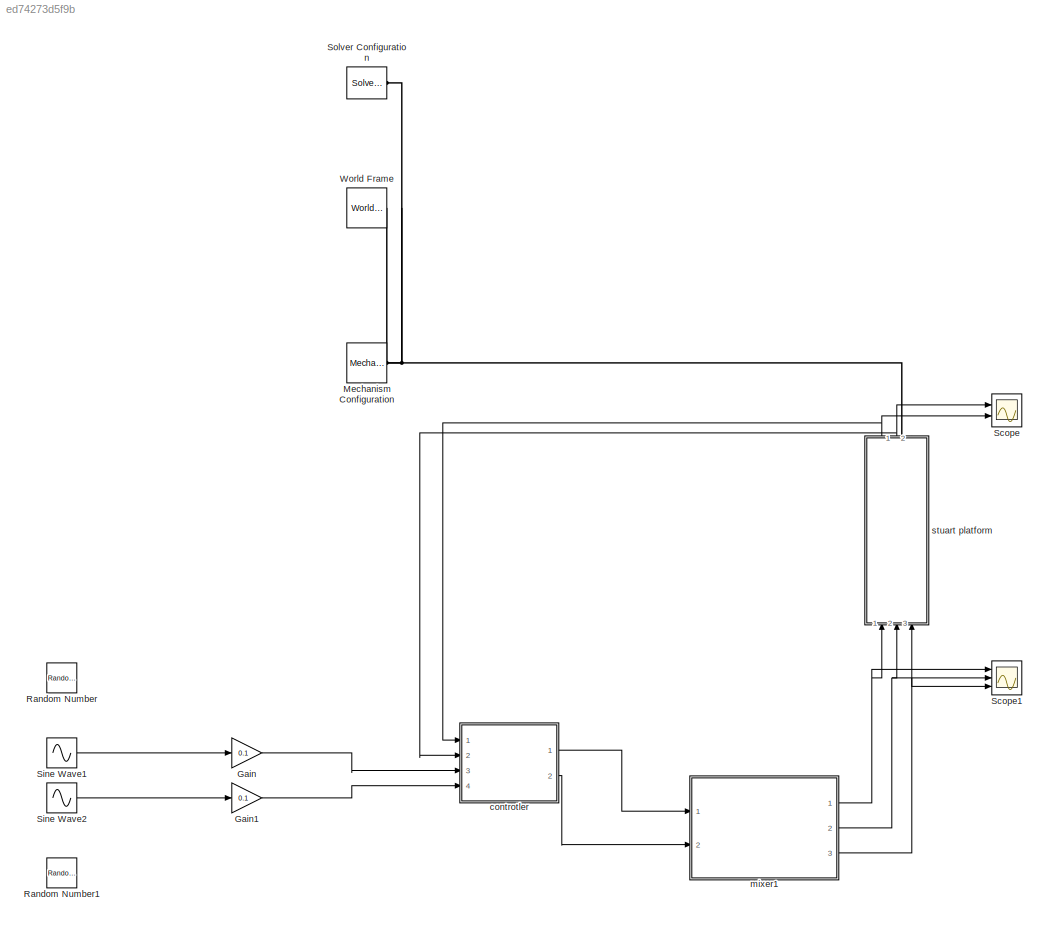
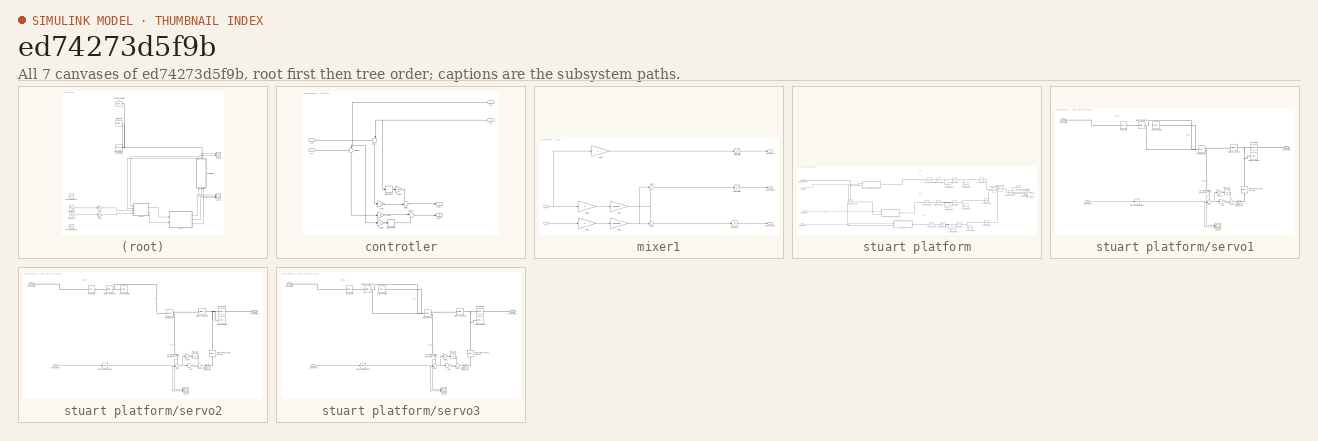
[diagram: thumbnail index - all 7 canvases of the model, root first then tree order]
MODEL slx_ed74273d5f9b
KIND model
CONFIG AbsTol = auto
CONFIG EnableMultiTasking = off
CONFIG FixedStep = auto
CONFIG MaxStep = auto
CONFIG MinStep = auto
CONFIG RelTol = 1e-3
CONFIG SampleTimeConstraint = Unconstrained
CONFIG Solver = VariableStepAuto
CONFIG SolverName = VariableStepAuto
CONFIG StartTime = 0.0
CONFIG StopTime = 100
BLOCK [Gain] Gain
  Gain = 0.1
BLOCK [Gain] Gain1
  Gain = 0.1
BLOCK [Reference] Mechanism Configuration  REF=sm_lib/Utilities/Mechanism
Configuration
  Ports = [0, 0, 0, 0, 0, 0, 1]
  SourceBlock = sm_lib/Utilities/Mechanism\nConfiguration
  SourceProductBaseCode = MS
  SourceType = Mechanism\nConfiguration
BLOCK [RandomNumber] Random Number
  SampleTime = 20
BLOCK [RandomNumber] Random Number1
  SampleTime = 5
BLOCK [Scope] Scope
  Floating = off
  NumInputPorts = 2
  Ports = [2]
  ScopeSpecificationString = Simulink.scopes.TimeScopeBlockCfg('CurrentConfiguration', extmgr.ConfigurationSet(extmgr.Configuration('Core','General UI',true),extmgr.Configuration('Core','Source UI',true),extmgr.Configuration('Sources','WiredSimulink',true,'DataLoggingVariableName','ScopeData1'),extmgr.Configuration('Visuals','Time Domain',true,'SerializedDisplays',{struct('MinYLimReal','-0.17021','MaxYLimReal','0.16793','YLab...<+1421ch>
BLOCK [Scope] Scope1
  Floating = off
  NumInputPorts = 3
  Ports = [3]
  ScopeSpecificationString = Simulink.scopes.TimeScopeBlockCfg('CurrentConfiguration', extmgr.ConfigurationSet(extmgr.Configuration('Core','General UI',true),extmgr.Configuration('Core','Source UI',true),extmgr.Configuration('Sources','WiredSimulink',true,'DataLoggingVariableName','ScopeData2'),extmgr.Configuration('Visuals','Time Domain',true,'PlotType','Line','SerializedDisplays',{struct('MinYLimReal','-66750927.68177','Max...<+1921ch>
BLOCK [Sin] Sine Wave1
  Amplitude = 0.5
  Ports = [0, 1]
  SampleTime = 0
BLOCK [Sin] Sine Wave2
  Frequency = 2
  Phase = pi/2
  Ports = [0, 1]
  SampleTime = 0
BLOCK [Reference] Solver Configuration  REF=nesl_utility/Solver
Configuration
  Ports = [0, 0, 0, 0, 0, 0, 1]
  SourceBlock = nesl_utility/Solver\nConfiguration
  SourceProductBaseCode = MT,SS
  SourceType = Solver\nConfiguration
BLOCK [Reference] World Frame  REF=sm_lib/Frames and
Transforms/World Frame
  Ports = [0, 0, 0, 0, 0, 0, 1]
  SourceBlock = sm_lib/Frames and\nTransforms/World Frame
  SourceProductBaseCode = MS
  SourceType = World Frame
BLOCK [SubSystem] controtler
  Ports = [4, 2]
  RequestExecContextInheritance = off
BLOCK [Derivative] controtler/Derivative
BLOCK [Derivative] controtler/Derivative1
BLOCK [Gain] controtler/Gain
  Gain = -40
BLOCK [Gain] controtler/Gain1
  Gain = 40
BLOCK [Gain] controtler/Gain2
  Gain = -30
BLOCK [Gain] controtler/Gain3
  Gain = 30
BLOCK [Inport] controtler/In1
BLOCK [Inport] controtler/In2
  Port = 2
BLOCK [Inport] controtler/In3
  Port = 3
BLOCK [Inport] controtler/In4
  Port = 4
BLOCK [Outport] controtler/Out1
BLOCK [Outport] controtler/Out2
  Port = 2
BLOCK [Sum] controtler/Sum
  Inputs = ++|
  Ports = [2, 1]
BLOCK [Sum] controtler/Sum1
  Inputs = |++
  Ports = [2, 1]
BLOCK [Sum] controtler/Sum2
  Inputs = ++|
  NameLocation = left
  Ports = [2, 1]
BLOCK [Sum] controtler/Sum3
  Inputs = ++|
  NameLocation = left
  Ports = [2, 1]
BLOCK [SubSystem] mixer1
  Ports = [2, 3]
  RequestExecContextInheritance = off
BLOCK [Outport] mixer1/Degrees in
  NameLocation = top
BLOCK [Outport] mixer1/Degrees in1
  NameLocation = top
  Port = 2
BLOCK [Outport] mixer1/Degrees in2
  NameLocation = top
  Port = 3
BLOCK [Gain] mixer1/Gain1
  Gain = sin(deg2rad(30))
BLOCK [Gain] mixer1/Gain2
  Gain = cos(deg2rad(30))
BLOCK [Gain] mixer1/Gain3
BLOCK [Gain] mixer1/Gain4
BLOCK [Gain] mixer1/Gain5
BLOCK [Saturate] mixer1/Saturation
  LowerLimit = -45
  UpperLimit = 45
BLOCK [Saturate] mixer1/Saturation1
  LowerLimit = -45
  UpperLimit = 45
BLOCK [Saturate] mixer1/Saturation2
  LowerLimit = -45
  UpperLimit = 45
BLOCK [Sum] mixer1/Sum1
  Inputs = -+|
  Ports = [2, 1]
BLOCK [Sum] mixer1/Sum3
  Inputs = |--
  Ports = [2, 1]
BLOCK [Inport] mixer1/x
  Port = 2
BLOCK [Inport] mixer1/y
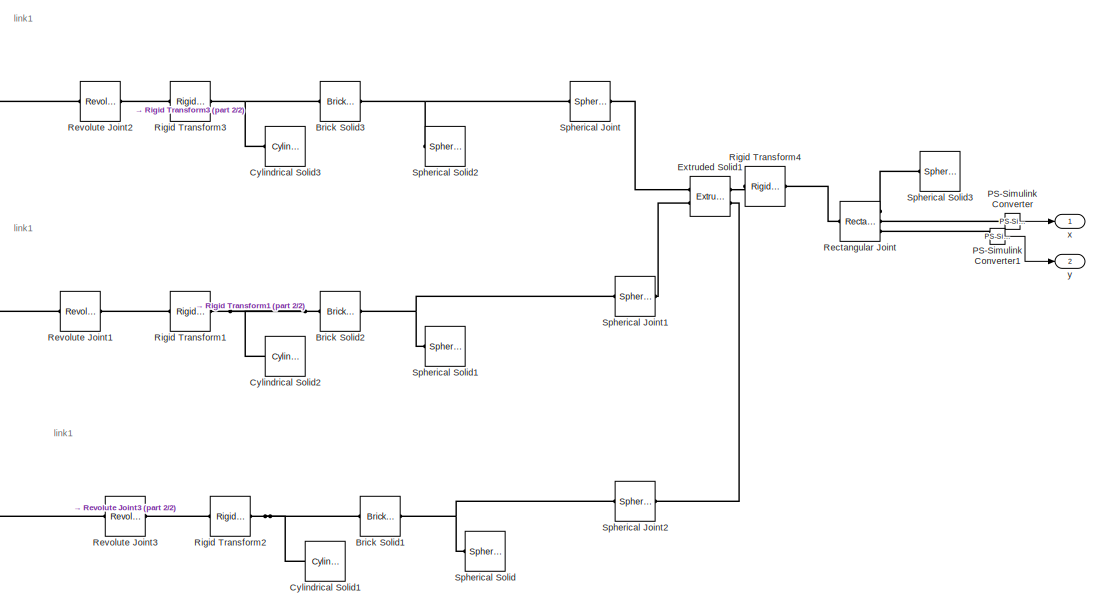
[diagram: stuart platform - part 1/2, right side, full height]
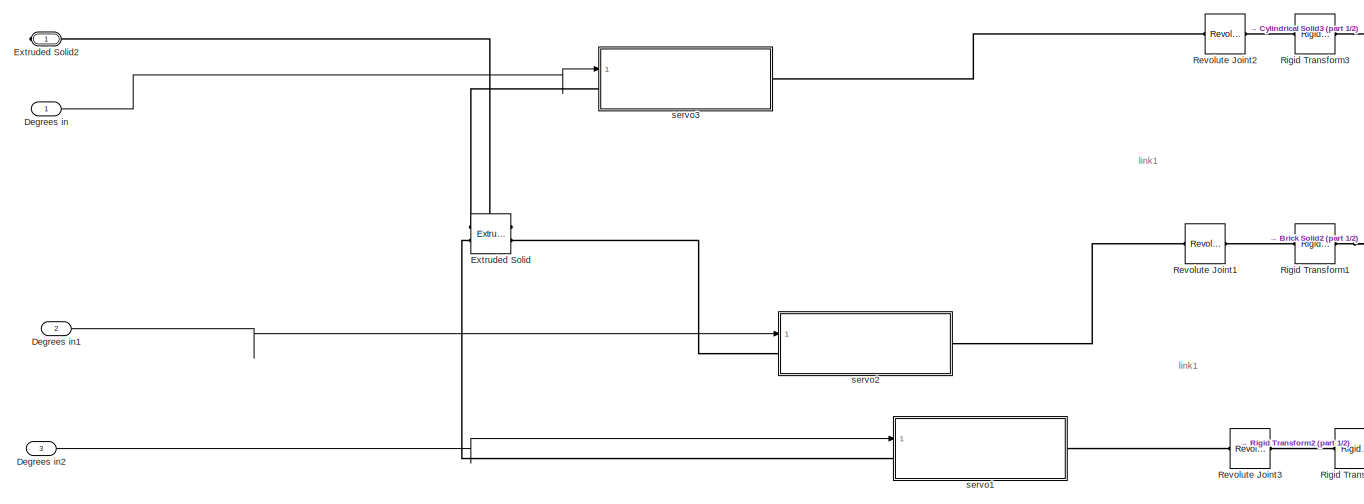
[diagram: stuart platform - part 2/2, left side, full height]
BLOCK [SubSystem] stuart platform
  NameLocation = left
  Ports = [3, 2, 0, 0, 0, 0, 1]
  RequestExecContextInheritance = off
BLOCK [Reference] stuart platform/Brick Solid1  REF=sm_lib/Body Elements/Brick Solid
  Ports = [0, 0, 0, 0, 0, 1, 1]
  SourceBlock = sm_lib/Body Elements/Brick Solid
  SourceProductBaseCode = MS
  SourceType = Brick Solid
BLOCK [Reference] stuart platform/Brick Solid2  REF=sm_lib/Body Elements/Brick Solid
  Ports = [0, 0, 0, 0, 0, 1, 1]
  SourceBlock = sm_lib/Body Elements/Brick Solid
  SourceProductBaseCode = MS
  SourceType = Brick Solid
BLOCK [Reference] stuart platform/Brick Solid3  REF=sm_lib/Body Elements/Brick Solid
  Ports = [0, 0, 0, 0, 0, 1, 1]
  SourceBlock = sm_lib/Body Elements/Brick Solid
  SourceProductBaseCode = MS
  SourceType = Brick Solid
BLOCK [Reference] stuart platform/Cylindrical Solid1  REF=sm_lib/Body Elements/Cylindrical Solid
  NameLocation = top
  Ports = [0, 0, 0, 0, 0, 0, 1]
  SourceBlock = sm_lib/Body Elements/Cylindrical Solid
  SourceProductBaseCode = MS
  SourceType = Cylindrical Solid
BLOCK [Reference] stuart platform/Cylindrical Solid2  REF=sm_lib/Body Elements/Cylindrical Solid
  NameLocation = top
  Ports = [0, 0, 0, 0, 0, 0, 1]
  SourceBlock = sm_lib/Body Elements/Cylindrical Solid
  SourceProductBaseCode = MS
  SourceType = Cylindrical Solid
BLOCK [Reference] stuart platform/Cylindrical Solid3  REF=sm_lib/Body Elements/Cylindrical Solid
  NameLocation = top
  Ports = [0, 0, 0, 0, 0, 0, 1]
  SourceBlock = sm_lib/Body Elements/Cylindrical Solid
  SourceProductBaseCode = MS
  SourceType = Cylindrical Solid
BLOCK [Inport] stuart platform/Degrees in
BLOCK [Inport] stuart platform/Degrees in1
  Port = 2
BLOCK [Inport] stuart platform/Degrees in2
  Port = 3
BLOCK [Reference] stuart platform/Extruded Solid  REF=sm_lib/Body Elements/Extruded Solid
  Ports = [0, 0, 0, 0, 0, 2, 2]
  SourceBlock = sm_lib/Body Elements/Extruded Solid
  SourceProductBaseCode = MS
  SourceType = Extruded Solid
BLOCK [Reference] stuart platform/Extruded Solid1  REF=sm_lib/Body Elements/Extruded Solid
  Ports = [0, 0, 0, 0, 0, 2, 2]
  SourceBlock = sm_lib/Body Elements/Extruded Solid
  SourceProductBaseCode = MS
  SourceType = Extruded Solid
BLOCK [PMIOPort] stuart platform/Extruded Solid2
  Side = Right
BLOCK [Reference] stuart platform/PS-Simulink Converter  REF=nesl_utility/PS-Simulink
Converter
  NameLocation = top
  Ports = [0, 1, 0, 0, 0, 1]
  SourceBlock = nesl_utility/PS-Simulink\nConverter
  SourceProductBaseCode = SS
  SourceType = PS-Simulink\nConverter
BLOCK [Reference] stuart platform/PS-Simulink Converter1  REF=nesl_utility/PS-Simulink
Converter
  NameLocation = top
  Ports = [0, 1, 0, 0, 0, 1]
  SourceBlock = nesl_utility/PS-Simulink\nConverter
  SourceProductBaseCode = SS
  SourceType = PS-Simulink\nConverter
BLOCK [Reference] stuart platform/Rectangular Joint  REF=sm_lib/Joints/Rectangular
Joint
  Ports = [0, 0, 0, 0, 0, 1, 3]
  SourceBlock = sm_lib/Joints/Rectangular\nJoint
  SourceProductBaseCode = MS
  SourceType = Rectangular\nJoint
BLOCK [Reference] stuart platform/Revolute Joint1  REF=sm_lib/Joints/Revolute Joint
  Ports = [0, 0, 0, 0, 0, 1, 1]
  SourceBlock = sm_lib/Joints/Revolute Joint
  SourceProductBaseCode = MS
  SourceType = Revolute Joint
BLOCK [Reference] stuart platform/Revolute Joint2  REF=sm_lib/Joints/Revolute Joint
  Ports = [0, 0, 0, 0, 0, 1, 1]
  SourceBlock = sm_lib/Joints/Revolute Joint
  SourceProductBaseCode = MS
  SourceType = Revolute Joint
BLOCK [Reference] stuart platform/Revolute Joint3  REF=sm_lib/Joints/Revolute Joint
  Ports = [0, 0, 0, 0, 0, 1, 1]
  SourceBlock = sm_lib/Joints/Revolute Joint
  SourceProductBaseCode = MS
  SourceType = Revolute Joint
BLOCK [Reference] stuart platform/Rigid Transform1  REF=sm_lib/Frames and
Transforms/Rigid
Transform
  Ports = [0, 0, 0, 0, 0, 1, 1]
  SourceBlock = sm_lib/Frames and\nTransforms/Rigid\nTransform
  SourceProductBaseCode = MS
  SourceType = Rigid\nTransform
BLOCK [Reference] stuart platform/Rigid Transform2  REF=sm_lib/Frames and
Transforms/Rigid
Transform
  Ports = [0, 0, 0, 0, 0, 1, 1]
  SourceBlock = sm_lib/Frames and\nTransforms/Rigid\nTransform
  SourceProductBaseCode = MS
  SourceType = Rigid\nTransform
BLOCK [Reference] stuart platform/Rigid Transform3  REF=sm_lib/Frames and
Transforms/Rigid
Transform
  Ports = [0, 0, 0, 0, 0, 1, 1]
  SourceBlock = sm_lib/Frames and\nTransforms/Rigid\nTransform
  SourceProductBaseCode = MS
  SourceType = Rigid\nTransform
BLOCK [Reference] stuart platform/Rigid Transform4  REF=sm_lib/Frames and
Transforms/Rigid
Transform
  Ports = [0, 0, 0, 0, 0, 1, 1]
  SourceBlock = sm_lib/Frames and\nTransforms/Rigid\nTransform
  SourceProductBaseCode = MS
  SourceType = Rigid\nTransform
BLOCK [Reference] stuart platform/Spherical Joint  REF=sm_lib/Joints/Spherical
Joint
  Ports = [0, 0, 0, 0, 0, 1, 1]
  SourceBlock = sm_lib/Joints/Spherical\nJoint
  SourceProductBaseCode = MS
  SourceType = Spherical\nJoint
BLOCK [Reference] stuart platform/Spherical Joint1  REF=sm_lib/Joints/Spherical
Joint
  Ports = [0, 0, 0, 0, 0, 1, 1]
  SourceBlock = sm_lib/Joints/Spherical\nJoint
  SourceProductBaseCode = MS
  SourceType = Spherical\nJoint
BLOCK [Reference] stuart platform/Spherical Joint2  REF=sm_lib/Joints/Spherical
Joint
  Ports = [0, 0, 0, 0, 0, 1, 1]
  SourceBlock = sm_lib/Joints/Spherical\nJoint
  SourceProductBaseCode = MS
  SourceType = Spherical\nJoint
BLOCK [Reference] stuart platform/Spherical Solid  REF=sm_lib/Body Elements/Spherical Solid
  Ports = [0, 0, 0, 0, 0, 0, 1]
  SourceBlock = sm_lib/Body Elements/Spherical Solid
  SourceProductBaseCode = MS
  SourceType = Spherical Solid
BLOCK [Reference] stuart platform/Spherical Solid1  REF=sm_lib/Body Elements/Spherical Solid
  Ports = [0, 0, 0, 0, 0, 0, 1]
  SourceBlock = sm_lib/Body Elements/Spherical Solid
  SourceProductBaseCode = MS
  SourceType = Spherical Solid
BLOCK [Reference] stuart platform/Spherical Solid2  REF=sm_lib/Body Elements/Spherical Solid
  Ports = [0, 0, 0, 0, 0, 0, 1]
  SourceBlock = sm_lib/Body Elements/Spherical Solid
  SourceProductBaseCode = MS
  SourceType = Spherical Solid
BLOCK [Reference] stuart platform/Spherical Solid3  REF=sm_lib/Body Elements/Spherical Solid
  Ports = [0, 0, 0, 0, 0, 0, 1]
  SourceBlock = sm_lib/Body Elements/Spherical Solid
  SourceProductBaseCode = MS
  SourceType = Spherical Solid
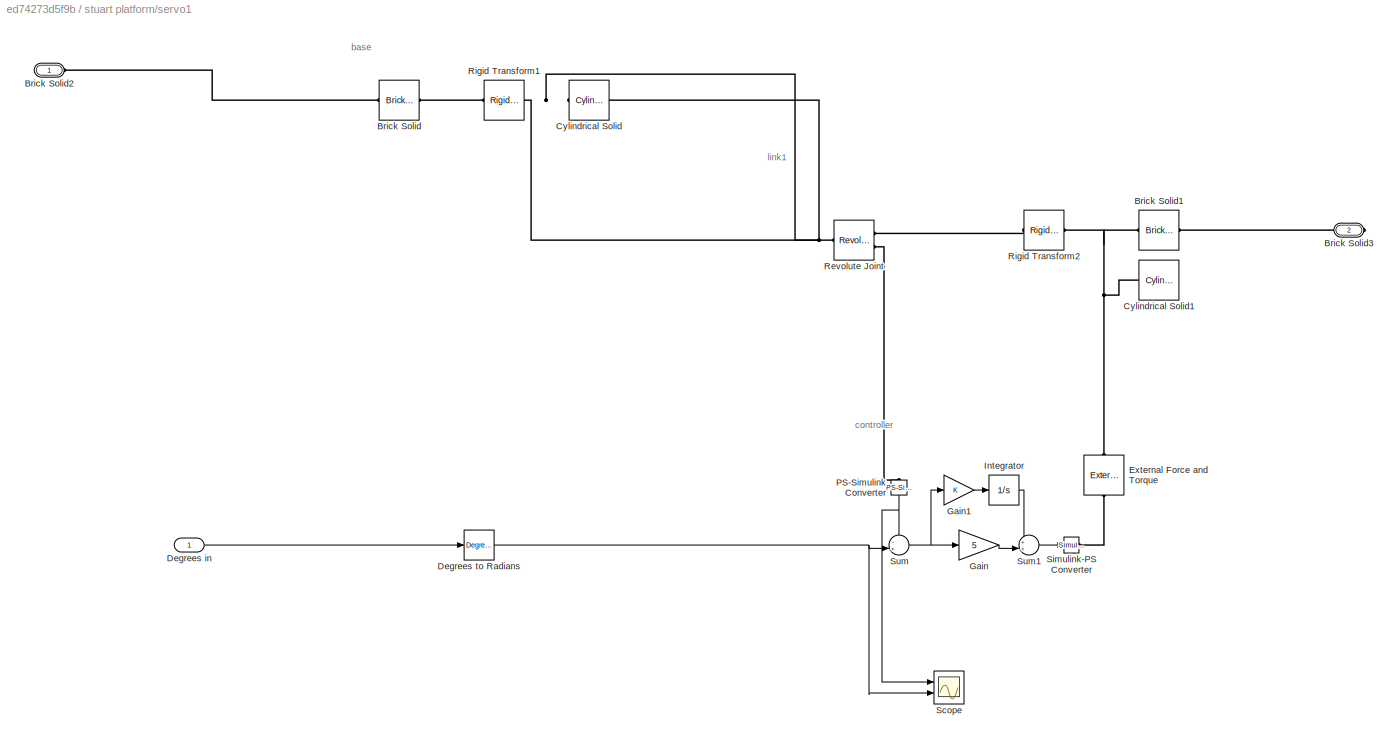
BLOCK [SubSystem] stuart platform/servo1
  PortSchema = {"entries":[{"content":{"sides":[{"content":{"connectorIds":["LConn1","In1"]},"type":"ConnectorPlacement.EquallySpacedRectSide","uuid":"9278b2ec-0bec-4e4f-9181-436d8a3d14d5"},{"content":{"connectorIds":["RConn1"],"side":"RIGHT"},"type":"ConnectorPlacement.EquallySpacedRectSide","uuid":"b3a11b61-2179-41b2-8de1-34a413ba9473"},{"content":{"connectorIds":[],"side":"TOP"},"type":"ConnectorPlacement.Equ...<+253ch>  <repeated x3 — deduplicated; at blocks: servo1, servo2, servo3>
  Ports = [1, 0, 0, 0, 0, 1, 1]
  RequestExecContextInheritance = off
BLOCK [Reference] stuart platform/servo1/Brick Solid  REF=sm_lib/Body Elements/Brick Solid
  NameLocation = left
  Ports = [0, 0, 0, 0, 0, 1, 1]
  SourceBlock = sm_lib/Body Elements/Brick Solid
  SourceProductBaseCode = MS
  SourceType = Brick Solid
BLOCK [Reference] stuart platform/servo1/Brick Solid1  REF=sm_lib/Body Elements/Brick Solid
  Ports = [0, 0, 0, 0, 0, 1, 1]
  SourceBlock = sm_lib/Body Elements/Brick Solid
  SourceProductBaseCode = MS
  SourceType = Brick Solid
BLOCK [PMIOPort] stuart platform/servo1/Brick Solid2
  Side = Left
BLOCK [PMIOPort] stuart platform/servo1/Brick Solid3
  Port = 2
  Side = Right
BLOCK [Reference] stuart platform/servo1/Cylindrical Solid  REF=sm_lib/Body Elements/Cylindrical Solid
  NameLocation = top
  Ports = [0, 0, 0, 0, 0, 0, 1]
  SourceBlock = sm_lib/Body Elements/Cylindrical Solid
  SourceProductBaseCode = MS
  SourceType = Cylindrical Solid
BLOCK [Reference] stuart platform/servo1/Cylindrical Solid1  REF=sm_lib/Body Elements/Cylindrical Solid
  NameLocation = top
  Ports = [0, 0, 0, 0, 0, 0, 1]
  SourceBlock = sm_lib/Body Elements/Cylindrical Solid
  SourceProductBaseCode = MS
  SourceType = Cylindrical Solid
BLOCK [Inport] stuart platform/servo1/Degrees in
BLOCK [Reference] stuart platform/servo1/Degrees to Radians  REF=simulink_extras/Transformations/Degrees to
Radians
  Ports = [1, 1]
  SourceBlock = simulink_extras/Transformations/Degrees to\nRadians
  SourceProductBaseCode = SL
  SourceType = DegreesToRadians
BLOCK [Reference] stuart platform/servo1/External Force and Torque  REF=sm_lib/Forces and
Torques/External Force
and Torque
  NameLocation = right
  Ports = [0, 0, 0, 0, 0, 1, 1]
  SourceBlock = sm_lib/Forces and\nTorques/External Force\nand Torque
  SourceProductBaseCode = MS
  SourceType = External Force\nand Torque
BLOCK [Gain] stuart platform/servo1/Gain
  Gain = 5
BLOCK [Gain] stuart platform/servo1/Gain1
BLOCK [Integrator] stuart platform/servo1/Integrator
  Ports = [1, 1]
BLOCK [Reference] stuart platform/servo1/PS-Simulink Converter  REF=nesl_utility/PS-Simulink
Converter
  NameLocation = left
  Ports = [0, 1, 0, 0, 0, 1]
  SourceBlock = nesl_utility/PS-Simulink\nConverter
  SourceProductBaseCode = SS
  SourceType = PS-Simulink\nConverter
BLOCK [Reference] stuart platform/servo1/Revolute Joint  REF=sm_lib/Joints/Revolute Joint
  Ports = [0, 0, 0, 0, 0, 1, 2]
  SourceBlock = sm_lib/Joints/Revolute Joint
  SourceProductBaseCode = MS
  SourceType = Revolute Joint
BLOCK [Reference] stuart platform/servo1/Rigid Transform1  REF=sm_lib/Frames and
Transforms/Rigid
Transform
  Ports = [0, 0, 0, 0, 0, 1, 1]
  SourceBlock = sm_lib/Frames and\nTransforms/Rigid\nTransform
  SourceProductBaseCode = MS
  SourceType = Rigid\nTransform
BLOCK [Reference] stuart platform/servo1/Rigid Transform2  REF=sm_lib/Frames and
Transforms/Rigid
Transform
  Ports = [0, 0, 0, 0, 0, 1, 1]
  SourceBlock = sm_lib/Frames and\nTransforms/Rigid\nTransform
  SourceProductBaseCode = MS
  SourceType = Rigid\nTransform
BLOCK [Scope] stuart platform/servo1/Scope
  Floating = off
  NumInputPorts = 2
  Ports = [2]
  ScopeSpecificationString = Simulink.scopes.TimeScopeBlockCfg('CurrentConfiguration', extmgr.ConfigurationSet(extmgr.Configuration('Core','General UI',true),extmgr.Configuration('Core','Source UI',true),extmgr.Configuration('Sources','WiredSimulink',true),extmgr.Configuration('Visuals','Time Domain',true,'SerializedDisplays',{struct('MinYLimReal','-0.19905','MaxYLimReal','1.7902','YLabelReal','','MinYLimMag','0.00000','MaxYL...<+1358ch>  <repeated x3 — deduplicated; at blocks: Scope>
BLOCK [Reference] stuart platform/servo1/Simulink-PS Converter  REF=nesl_utility/Simulink-PS
Converter
  Ports = [1, 0, 0, 0, 0, 0, 1]
  SourceBlock = nesl_utility/Simulink-PS\nConverter
  SourceProductBaseCode = SS
  SourceType = Simulink-PS\nConverter
BLOCK [Sum] stuart platform/servo1/Sum
  Inputs = -+|
  Ports = [2, 1]
BLOCK [Sum] stuart platform/servo1/Sum1
  Inputs = ++|
  Ports = [2, 1]
BLOCK [SubSystem] stuart platform/servo2
  Ports = [1, 0, 0, 0, 0, 1, 1]
  RequestExecContextInheritance = off
BLOCK [Reference] stuart platform/servo2/Brick Solid  REF=sm_lib/Body Elements/Brick Solid
  NameLocation = left
  Ports = [0, 0, 0, 0, 0, 1, 1]
  SourceBlock = sm_lib/Body Elements/Brick Solid
  SourceProductBaseCode = MS
  SourceType = Brick Solid
BLOCK [Reference] stuart platform/servo2/Brick Solid1  REF=sm_lib/Body Elements/Brick Solid
  Ports = [0, 0, 0, 0, 0, 1, 1]
  SourceBlock = sm_lib/Body Elements/Brick Solid
  SourceProductBaseCode = MS
  SourceType = Brick Solid
BLOCK [PMIOPort] stuart platform/servo2/Brick Solid2
  Side = Left
BLOCK [PMIOPort] stuart platform/servo2/Brick Solid3
  Port = 2
  Side = Right
BLOCK [Reference] stuart platform/servo2/Cylindrical Solid  REF=sm_lib/Body Elements/Cylindrical Solid
  NameLocation = top
  Ports = [0, 0, 0, 0, 0, 0, 1]
  SourceBlock = sm_lib/Body Elements/Cylindrical Solid
  SourceProductBaseCode = MS
  SourceType = Cylindrical Solid
BLOCK [Reference] stuart platform/servo2/Cylindrical Solid1  REF=sm_lib/Body Elements/Cylindrical Solid
  NameLocation = top
  Ports = [0, 0, 0, 0, 0, 0, 1]
  SourceBlock = sm_lib/Body Elements/Cylindrical Solid
  SourceProductBaseCode = MS
  SourceType = Cylindrical Solid
BLOCK [Inport] stuart platform/servo2/Degrees in
BLOCK [Reference] stuart platform/servo2/Degrees to Radians  REF=simulink_extras/Transformations/Degrees to
Radians
  Ports = [1, 1]
  SourceBlock = simulink_extras/Transformations/Degrees to\nRadians
  SourceProductBaseCode = SL
  SourceType = DegreesToRadians
BLOCK [Reference] stuart platform/servo2/External Force and Torque  REF=sm_lib/Forces and
Torques/External Force
and Torque
  NameLocation = right
  Ports = [0, 0, 0, 0, 0, 1, 1]
  SourceBlock = sm_lib/Forces and\nTorques/External Force\nand Torque
  SourceProductBaseCode = MS
  SourceType = External Force\nand Torque
BLOCK [Gain] stuart platform/servo2/Gain
  Gain = 5
BLOCK [Gain] stuart platform/servo2/Gain1
BLOCK [Integrator] stuart platform/servo2/Integrator
  Ports = [1, 1]
BLOCK [Reference] stuart platform/servo2/PS-Simulink Converter  REF=nesl_utility/PS-Simulink
Converter
  NameLocation = left
  Ports = [0, 1, 0, 0, 0, 1]
  SourceBlock = nesl_utility/PS-Simulink\nConverter
  SourceProductBaseCode = SS
  SourceType = PS-Simulink\nConverter
BLOCK [Reference] stuart platform/servo2/Revolute Joint  REF=sm_lib/Joints/Revolute Joint
  Ports = [0, 0, 0, 0, 0, 1, 2]
  SourceBlock = sm_lib/Joints/Revolute Joint
  SourceProductBaseCode = MS
  SourceType = Revolute Joint
BLOCK [Reference] stuart platform/servo2/Rigid Transform1  REF=sm_lib/Frames and
Transforms/Rigid
Transform
  Ports = [0, 0, 0, 0, 0, 1, 1]
  SourceBlock = sm_lib/Frames and\nTransforms/Rigid\nTransform
  SourceProductBaseCode = MS
  SourceType = Rigid\nTransform
BLOCK [Reference] stuart platform/servo2/Rigid Transform2  REF=sm_lib/Frames and
Transforms/Rigid
Transform
  Ports = [0, 0, 0, 0, 0, 1, 1]
  SourceBlock = sm_lib/Frames and\nTransforms/Rigid\nTransform
  SourceProductBaseCode = MS
  SourceType = Rigid\nTransform
BLOCK [Scope] stuart platform/servo2/Scope
  Floating = off
  NumInputPorts = 2
  Ports = [2]
BLOCK [Reference] stuart platform/servo2/Simulink-PS Converter  REF=nesl_utility/Simulink-PS
Converter
  Ports = [1, 0, 0, 0, 0, 0, 1]
  SourceBlock = nesl_utility/Simulink-PS\nConverter
  SourceProductBaseCode = SS
  SourceType = Simulink-PS\nConverter
BLOCK [Sum] stuart platform/servo2/Sum
  Inputs = -+|
  Ports = [2, 1]
BLOCK [Sum] stuart platform/servo2/Sum1
  Inputs = ++|
  Ports = [2, 1]
BLOCK [SubSystem] stuart platform/servo3
  Ports = [1, 0, 0, 0, 0, 1, 1]
  RequestExecContextInheritance = off
BLOCK [Reference] stuart platform/servo3/Brick Solid  REF=sm_lib/Body Elements/Brick Solid
  NameLocation = left
  Ports = [0, 0, 0, 0, 0, 1, 1]
  SourceBlock = sm_lib/Body Elements/Brick Solid
  SourceProductBaseCode = MS
  SourceType = Brick Solid
BLOCK [Reference] stuart platform/servo3/Brick Solid1  REF=sm_lib/Body Elements/Brick Solid
  Ports = [0, 0, 0, 0, 0, 1, 1]
  SourceBlock = sm_lib/Body Elements/Brick Solid
  SourceProductBaseCode = MS
  SourceType = Brick Solid
BLOCK [PMIOPort] stuart platform/servo3/Brick Solid2
  Side = Left
BLOCK [PMIOPort] stuart platform/servo3/Brick Solid3
  Port = 2
  Side = Right
BLOCK [Reference] stuart platform/servo3/Cylindrical Solid  REF=sm_lib/Body Elements/Cylindrical Solid
  NameLocation = top
  Ports = [0, 0, 0, 0, 0, 0, 1]
  SourceBlock = sm_lib/Body Elements/Cylindrical Solid
  SourceProductBaseCode = MS
  SourceType = Cylindrical Solid
BLOCK [Reference] stuart platform/servo3/Cylindrical Solid1  REF=sm_lib/Body Elements/Cylindrical Solid
  NameLocation = top
  Ports = [0, 0, 0, 0, 0, 0, 1]
  SourceBlock = sm_lib/Body Elements/Cylindrical Solid
  SourceProductBaseCode = MS
  SourceType = Cylindrical Solid
BLOCK [Inport] stuart platform/servo3/Degrees in
BLOCK [Reference] stuart platform/servo3/Degrees to Radians  REF=simulink_extras/Transformations/Degrees to
Radians
  Ports = [1, 1]
  SourceBlock = simulink_extras/Transformations/Degrees to\nRadians
  SourceProductBaseCode = SL
  SourceType = DegreesToRadians
BLOCK [Reference] stuart platform/servo3/External Force and Torque  REF=sm_lib/Forces and
Torques/External Force
and Torque
  NameLocation = right
  Ports = [0, 0, 0, 0, 0, 1, 1]
  SourceBlock = sm_lib/Forces and\nTorques/External Force\nand Torque
  SourceProductBaseCode = MS
  SourceType = External Force\nand Torque
BLOCK [Gain] stuart platform/servo3/Gain
  Gain = 5
BLOCK [Gain] stuart platform/servo3/Gain1
BLOCK [Integrator] stuart platform/servo3/Integrator
  Ports = [1, 1]
BLOCK [Reference] stuart platform/servo3/PS-Simulink Converter  REF=nesl_utility/PS-Simulink
Converter
  NameLocation = left
  Ports = [0, 1, 0, 0, 0, 1]
  SourceBlock = nesl_utility/PS-Simulink\nConverter
  SourceProductBaseCode = SS
  SourceType = PS-Simulink\nConverter
BLOCK [Reference] stuart platform/servo3/Revolute Joint  REF=sm_lib/Joints/Revolute Joint
  Ports = [0, 0, 0, 0, 0, 1, 2]
  SourceBlock = sm_lib/Joints/Revolute Joint
  SourceProductBaseCode = MS
  SourceType = Revolute Joint
BLOCK [Reference] stuart platform/servo3/Rigid Transform1  REF=sm_lib/Frames and
Transforms/Rigid
Transform
  Ports = [0, 0, 0, 0, 0, 1, 1]
  SourceBlock = sm_lib/Frames and\nTransforms/Rigid\nTransform
  SourceProductBaseCode = MS
  SourceType = Rigid\nTransform
BLOCK [Reference] stuart platform/servo3/Rigid Transform2  REF=sm_lib/Frames and
Transforms/Rigid
Transform
  Ports = [0, 0, 0, 0, 0, 1, 1]
  SourceBlock = sm_lib/Frames and\nTransforms/Rigid\nTransform
  SourceProductBaseCode = MS
  SourceType = Rigid\nTransform
BLOCK [Scope] stuart platform/servo3/Scope
  Floating = off
  NumInputPorts = 2
  Ports = [2]
BLOCK [Reference] stuart platform/servo3/Simulink-PS Converter  REF=nesl_utility/Simulink-PS
Converter
  Ports = [1, 0, 0, 0, 0, 0, 1]
  SourceBlock = nesl_utility/Simulink-PS\nConverter
  SourceProductBaseCode = SS
  SourceType = Simulink-PS\nConverter
BLOCK [Sum] stuart platform/servo3/Sum
  Inputs = -+|
  Ports = [2, 1]
BLOCK [Sum] stuart platform/servo3/Sum1
  Inputs = ++|
  Ports = [2, 1]
BLOCK [Outport] stuart platform/x
BLOCK [Outport] stuart platform/y
  Port = 2
ANNOTATION stuart platform: link1
ANNOTATION stuart platform/servo1: base
ANNOTATION stuart platform/servo1: controller
ANNOTATION stuart platform/servo1: link1
ANNOTATION stuart platform/servo2: base
ANNOTATION stuart platform/servo2: controller
ANNOTATION stuart platform/servo2: link1
ANNOTATION stuart platform/servo3: base
ANNOTATION stuart platform/servo3: controller
ANNOTATION stuart platform/servo3: link1
LINE Gain1:1 -> controtler:4
LINE Gain:1 -> controtler:3
LINE Sine Wave1:1 -> Gain:1
LINE Sine Wave2:1 -> Gain1:1
LINE controtler/Derivative1:1 -> controtler/Sum1:2
LINE controtler/Derivative:1 -> controtler/Gain2:1
LINE controtler/Gain1:1 -> controtler/Sum1:1
LINE controtler/Gain2:1 -> controtler/Sum:1
LINE controtler/Gain3:1 -> controtler/Derivative1:1
LINE controtler/Gain:1 -> controtler/Sum:2
NET controtler/In1:1 -> controtler/Gain3:1, controtler/Sum2:2
NET controtler/In2:1 -> controtler/Derivative:1, controtler/Sum3:2
LINE controtler/In3:1 -> controtler/Sum3:1
LINE controtler/In4:1 -> controtler/Sum2:1
LINE controtler/Sum1:1 -> controtler/Out2:1
LINE controtler/Sum2:1 -> controtler/Gain1:1
LINE controtler/Sum3:1 -> controtler/Gain:1
LINE controtler/Sum:1 -> controtler/Out1:1
LINE controtler:1 -> mixer1:1
LINE controtler:2 -> mixer1:2
NET mixer1/Gain1:1 -> mixer1/Sum1:1, mixer1/Sum3:2
NET mixer1/Gain2:1 -> mixer1/Sum1:2, mixer1/Sum3:1
LINE mixer1/Gain3:1 -> mixer1/Gain1:1
LINE mixer1/Gain4:1 -> mixer1/Gain2:1
LINE mixer1/Gain5:1 -> mixer1/Saturation:1
LINE mixer1/Saturation1:1 -> mixer1/Degrees in1:1
LINE mixer1/Saturation2:1 -> mixer1/Degrees in2:1
LINE mixer1/Saturation:1 -> mixer1/Degrees in:1
LINE mixer1/Sum1:1 -> mixer1/Saturation2:1
LINE mixer1/Sum3:1 -> mixer1/Saturation1:1
NET mixer1/x:1 -> mixer1/Gain3:1, mixer1/Gain5:1
LINE mixer1/y:1 -> mixer1/Gain4:1
NET mixer1:1 -> Scope1:1, stuart platform:1
NET mixer1:2 -> Scope1:2, stuart platform:2
NET mixer1:3 -> Scope1:3, stuart platform:3
LINE stuart platform/Degrees in1:1 -> stuart platform/servo2:1
LINE stuart platform/Degrees in2:1 -> stuart platform/servo1:1
LINE stuart platform/Degrees in:1 -> stuart platform/servo3:1
LINE stuart platform/PS-Simulink Converter1:1 -> stuart platform/y:1
LINE stuart platform/PS-Simulink Converter:1 -> stuart platform/x:1
LINE stuart platform/servo1/Degrees in:1 -> stuart platform/servo1/Degrees to Radians:1
NET stuart platform/servo1/Degrees to Radians:1 -> stuart platform/servo1/Scope:2, stuart platform/servo1/Sum:2
LINE stuart platform/servo1/Gain1:1 -> stuart platform/servo1/Integrator:1
LINE stuart platform/servo1/Gain:1 -> stuart platform/servo1/Sum1:2
LINE stuart platform/servo1/Integrator:1 -> stuart platform/servo1/Sum1:1
NET stuart platform/servo1/PS-Simulink Converter:1 -> stuart platform/servo1/Scope:1, stuart platform/servo1/Sum:1
LINE stuart platform/servo1/Sum1:1 -> stuart platform/servo1/Simulink-PS Converter:1
NET stuart platform/servo1/Sum:1 -> stuart platform/servo1/Gain1:1, stuart platform/servo1/Gain:1
LINE stuart platform/servo2/Degrees in:1 -> stuart platform/servo2/Degrees to Radians:1
NET stuart platform/servo2/Degrees to Radians:1 -> stuart platform/servo2/Scope:2, stuart platform/servo2/Sum:2
LINE stuart platform/servo2/Gain1:1 -> stuart platform/servo2/Integrator:1
LINE stuart platform/servo2/Gain:1 -> stuart platform/servo2/Sum1:2
LINE stuart platform/servo2/Integrator:1 -> stuart platform/servo2/Sum1:1
NET stuart platform/servo2/PS-Simulink Converter:1 -> stuart platform/servo2/Scope:1, stuart platform/servo2/Sum:1
LINE stuart platform/servo2/Sum1:1 -> stuart platform/servo2/Simulink-PS Converter:1
NET stuart platform/servo2/Sum:1 -> stuart platform/servo2/Gain1:1, stuart platform/servo2/Gain:1
LINE stuart platform/servo3/Degrees in:1 -> stuart platform/servo3/Degrees to Radians:1
NET stuart platform/servo3/Degrees to Radians:1 -> stuart platform/servo3/Scope:2, stuart platform/servo3/Sum:2
LINE stuart platform/servo3/Gain1:1 -> stuart platform/servo3/Integrator:1
LINE stuart platform/servo3/Gain:1 -> stuart platform/servo3/Sum1:2
LINE stuart platform/servo3/Integrator:1 -> stuart platform/servo3/Sum1:1
NET stuart platform/servo3/PS-Simulink Converter:1 -> stuart platform/servo3/Scope:1, stuart platform/servo3/Sum:1
LINE stuart platform/servo3/Sum1:1 -> stuart platform/servo3/Simulink-PS Converter:1
NET stuart platform/servo3/Sum:1 -> stuart platform/servo3/Gain1:1, stuart platform/servo3/Gain:1
NET stuart platform:1 -> Scope:2, controtler:1
NET stuart platform:2 -> Scope:1, controtler:2
PNET net1: Mechanism Configuration:RConn1 -- Solver Configuration:RConn1 -- World Frame:RConn1 -- stuart platform:RConn1
PNET net2: stuart platform/Brick Solid1:LConn1 -- stuart platform/Cylindrical Solid1:RConn1 -- stuart platform/Rigid Transform2:RConn1
PNET net3: stuart platform/Brick Solid1:RConn1 -- stuart platform/Spherical Joint2:LConn1 -- stuart platform/Spherical Solid:RConn1
PNET net4: stuart platform/Brick Solid2:LConn1 -- stuart platform/Cylindrical Solid2:RConn1 -- stuart platform/Rigid Transform1:RConn1
PNET net5: stuart platform/Brick Solid2:RConn1 -- stuart platform/Spherical Joint1:LConn1 -- stuart platform/Spherical Solid1:RConn1
PNET net6: stuart platform/Brick Solid3:LConn1 -- stuart platform/Cylindrical Solid3:RConn1 -- stuart platform/Rigid Transform3:RConn1
PNET net7: stuart platform/Brick Solid3:RConn1 -- stuart platform/Spherical Joint:LConn1 -- stuart platform/Spherical Solid2:RConn1
PLINE stuart platform/Extruded Solid1:LConn1 -- stuart platform/Spherical Joint:RConn1
PLINE stuart platform/Extruded Solid1:LConn2 -- stuart platform/Spherical Joint1:RConn1
PLINE stuart platform/Extruded Solid1:RConn1 -- stuart platform/Rigid Transform4:LConn1
PLINE stuart platform/Extruded Solid1:RConn2 -- stuart platform/Spherical Joint2:RConn1
PLINE stuart platform/Extruded Solid2:RConn1 -- stuart platform/Extruded Solid:RConn1
PLINE stuart platform/Extruded Solid:LConn1 -- stuart platform/servo3:LConn1
PLINE stuart platform/Extruded Solid:LConn2 -- stuart platform/servo1:LConn1
PLINE stuart platform/Extruded Solid:RConn2 -- stuart platform/servo2:LConn1
PLINE stuart platform/PS-Simulink Converter1:LConn1 -- stuart platform/Rectangular Joint:RConn3
PLINE stuart platform/PS-Simulink Converter:LConn1 -- stuart platform/Rectangular Joint:RConn2
PLINE stuart platform/Rectangular Joint:LConn1 -- stuart platform/Rigid Transform4:RConn1
PLINE stuart platform/Rectangular Joint:RConn1 -- stuart platform/Spherical Solid3:RConn1
PLINE stuart platform/Revolute Joint1:LConn1 -- stuart platform/servo2:RConn1
PLINE stuart platform/Revolute Joint1:RConn1 -- stuart platform/Rigid Transform1:LConn1
PLINE stuart platform/Revolute Joint2:LConn1 -- stuart platform/servo3:RConn1
PLINE stuart platform/Revolute Joint2:RConn1 -- stuart platform/Rigid Transform3:LConn1
PLINE stuart platform/Revolute Joint3:LConn1 -- stuart platform/servo1:RConn1
PLINE stuart platform/Revolute Joint3:RConn1 -- stuart platform/Rigid Transform2:LConn1
PNET net8: stuart platform/servo1/Brick Solid1:LConn1 -- stuart platform/servo1/Cylindrical Solid1:RConn1 -- stuart platform/servo1/External Force and Torque:RConn1 -- stuart platform/servo1/Rigid Transform2:RConn1
PLINE stuart platform/servo1/Brick Solid1:RConn1 -- stuart platform/servo1/Brick Solid3:RConn1
PLINE stuart platform/servo1/Brick Solid2:RConn1 -- stuart platform/servo1/Brick Solid:LConn1
PLINE stuart platform/servo1/Brick Solid:RConn1 -- stuart platform/servo1/Rigid Transform1:LConn1
PNET net9: stuart platform/servo1/Cylindrical Solid:RConn1 -- stuart platform/servo1/Revolute Joint:LConn1 -- stuart platform/servo1/Rigid Transform1:RConn1
PLINE stuart platform/servo1/External Force and Torque:LConn1 -- stuart platform/servo1/Simulink-PS Converter:RConn1
PLINE stuart platform/servo1/PS-Simulink Converter:LConn1 -- stuart platform/servo1/Revolute Joint:RConn2
PLINE stuart platform/servo1/Revolute Joint:RConn1 -- stuart platform/servo1/Rigid Transform2:LConn1
PNET net10: stuart platform/servo2/Brick Solid1:LConn1 -- stuart platform/servo2/Cylindrical Solid1:RConn1 -- stuart platform/servo2/External Force and Torque:RConn1 -- stuart platform/servo2/Rigid Transform2:RConn1
PLINE stuart platform/servo2/Brick Solid1:RConn1 -- stuart platform/servo2/Brick Solid3:RConn1
PLINE stuart platform/servo2/Brick Solid2:RConn1 -- stuart platform/servo2/Brick Solid:LConn1
PLINE stuart platform/servo2/Brick Solid:RConn1 -- stuart platform/servo2/Rigid Transform1:LConn1
PNET net11: stuart platform/servo2/Cylindrical Solid:RConn1 -- stuart platform/servo2/Revolute Joint:LConn1 -- stuart platform/servo2/Rigid Transform1:RConn1
PLINE stuart platform/servo2/External Force and Torque:LConn1 -- stuart platform/servo2/Simulink-PS Converter:RConn1
PLINE stuart platform/servo2/PS-Simulink Converter:LConn1 -- stuart platform/servo2/Revolute Joint:RConn2
PLINE stuart platform/servo2/Revolute Joint:RConn1 -- stuart platform/servo2/Rigid Transform2:LConn1
PNET net12: stuart platform/servo3/Brick Solid1:LConn1 -- stuart platform/servo3/Cylindrical Solid1:RConn1 -- stuart platform/servo3/External Force and Torque:RConn1 -- stuart platform/servo3/Rigid Transform2:RConn1
PLINE stuart platform/servo3/Brick Solid1:RConn1 -- stuart platform/servo3/Brick Solid3:RConn1
PLINE stuart platform/servo3/Brick Solid2:RConn1 -- stuart platform/servo3/Brick Solid:LConn1
PLINE stuart platform/servo3/Brick Solid:RConn1 -- stuart platform/servo3/Rigid Transform1:LConn1
PNET net13: stuart platform/servo3/Cylindrical Solid:RConn1 -- stuart platform/servo3/Revolute Joint:LConn1 -- stuart platform/servo3/Rigid Transform1:RConn1
PLINE stuart platform/servo3/External Force and Torque:LConn1 -- stuart platform/servo3/Simulink-PS Converter:RConn1
PLINE stuart platform/servo3/PS-Simulink Converter:LConn1 -- stuart platform/servo3/Revolute Joint:RConn2
PLINE stuart platform/servo3/Revolute Joint:RConn1 -- stuart platform/servo3/Rigid Transform2:LConn1
note: NET lines group one-source signal fan-out (src -> all destinations, sorted); 1:1 wires keep LINE; PNET lines group multi-terminal physical nets as a canonical sorted terminal list (undirected conserving connections); 2-terminal nets keep the pairwise PLINE form
